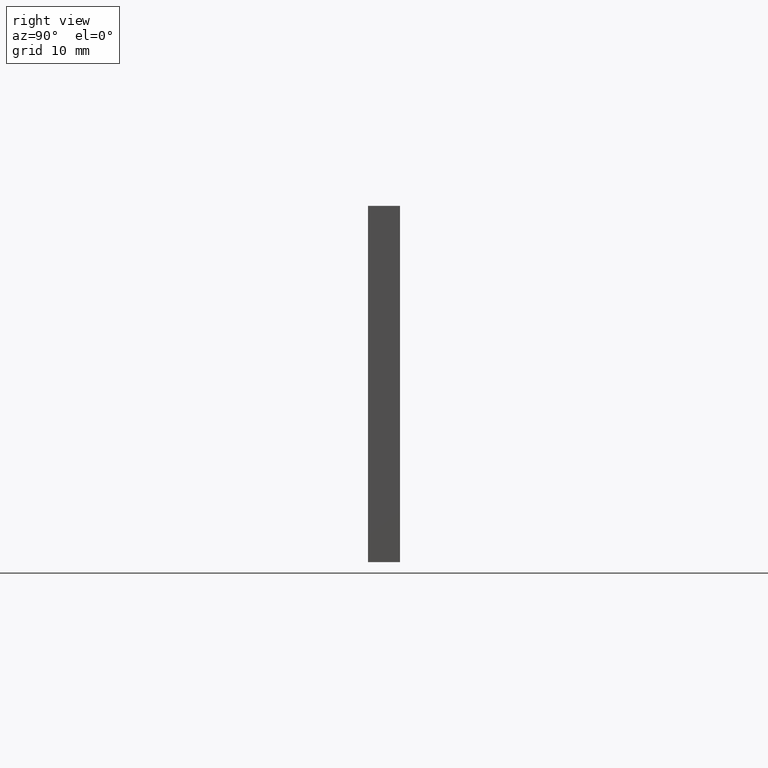
[diagram: clean part render]
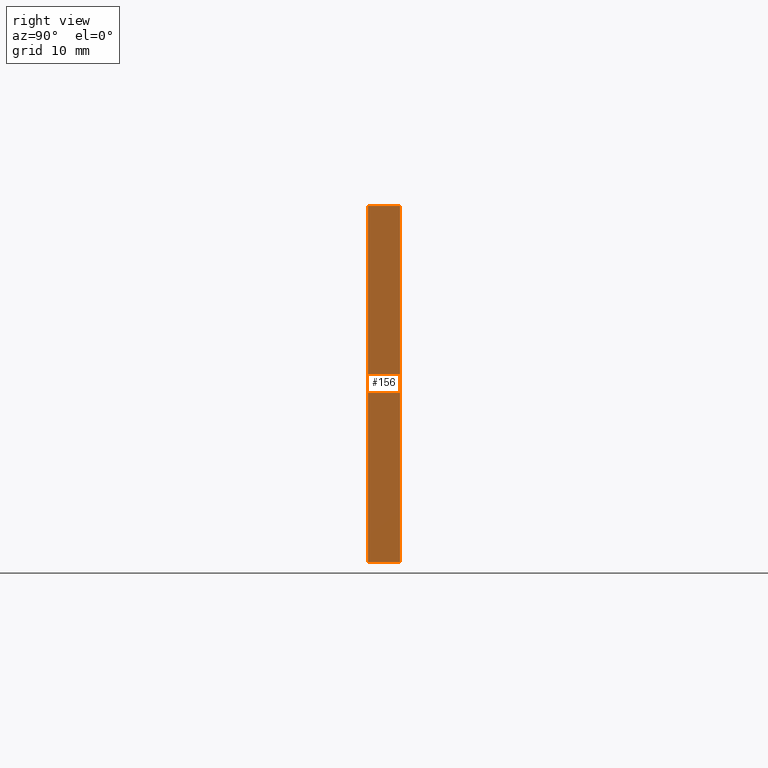
[diagram: same view with one face highlighted and labeled with its STEP entity id]
A machine part, right view. The second image highlights one B-rep face of the part: STEP entity #156.
In plain terms, the highlighted planar face has unit normal (-1, 0, 0).
Its self-contained STEP definition (entity closure, byte-faithful):
#4 = EDGE_CURVE ( 'NONE', #214, #240, #44, .T. ) ;
#9 = AXIS2_PLACEMENT_3D ( 'NONE', #215, #286, #288 ) ;
#27 = EDGE_CURVE ( 'NONE', #226, #240, #106, .T. ) ;
#29 = EDGE_CURVE ( 'NONE', #255, #226, #108, .T. ) ;
#38 = EDGE_CURVE ( 'NONE', #214, #255, #113, .T. ) ;
#43 = ORIENTED_EDGE ( 'NONE', *, *, #38, .F. ) ;
#44 = LINE ( 'NONE', #213, #95 ) ;
#76 = ORIENTED_EDGE ( 'NONE', *, *, #29, .F. ) ;
#78 = ORIENTED_EDGE ( 'NONE', *, *, #4, .T. ) ;
#83 = EDGE_LOOP ( 'NONE', ( #78, #122, #76, #43 ) ) ;
#95 = VECTOR ( 'NONE', #256, 1000.000000000000000 ) ;
#101 = FACE_OUTER_BOUND ( 'NONE', #83, .T. ) ;
#106 = LINE ( 'NONE', #234, #107 ) ;
#107 = VECTOR ( 'NONE', #248, 1000.000000000000000 ) ;
#108 = LINE ( 'NONE', #245, #109 ) ;
#109 = VECTOR ( 'NONE', #233, 1000.000000000000000 ) ;
#113 = LINE ( 'NONE', #246, #114 ) ;
#114 = VECTOR ( 'NONE', #178, 1000.000000000000000 ) ;
#122 = ORIENTED_EDGE ( 'NONE', *, *, #27, .F. ) ;
#156 = ADVANCED_FACE ( 'NONE', ( #101 ), #247, .F. ) ;
#174 = CARTESIAN_POINT ( 'NONE',  ( 30.00000000000000000, 3.000000000000000000, 16.75000000000000000 ) ) ;
#178 = DIRECTION ( 'NONE',  ( 0.0000000000000000000, 0.0000000000000000000, 1.000000000000000000 ) ) ;
#205 = CARTESIAN_POINT ( 'NONE',  ( 30.00000000000000000, 0.0000000000000000000, 16.75000000000000000 ) ) ;
#209 = CARTESIAN_POINT ( 'NONE',  ( 30.00000000000000000, 3.000000000000000000, -16.75000000000000000 ) ) ;
#213 = CARTESIAN_POINT ( 'NONE',  ( 30.00000000000000000, 3.000000000000000000, -16.75000000000000000 ) ) ;
#214 = VERTEX_POINT ( 'NONE', #284 ) ;
#215 = CARTESIAN_POINT ( 'NONE',  ( 30.00000000000000000, 3.000000000000000000, 16.75000000000000000 ) ) ;
#226 = VERTEX_POINT ( 'NONE', #174 ) ;
#233 = DIRECTION ( 'NONE',  ( 0.0000000000000000000, 1.000000000000000000, -0.0000000000000000000 ) ) ;
#234 = CARTESIAN_POINT ( 'NONE',  ( 30.00000000000000000, 3.000000000000000000, 0.0000000000000000000 ) ) ;
#240 = VERTEX_POINT ( 'NONE', #209 ) ;
#245 = CARTESIAN_POINT ( 'NONE',  ( 30.00000000000000000, 3.000000000000000000, 16.75000000000000000 ) ) ;
#246 = CARTESIAN_POINT ( 'NONE',  ( 30.00000000000000000, 0.0000000000000000000, 16.75000000000000000 ) ) ;
#247 = PLANE ( 'NONE',  #9 ) ;
#248 = DIRECTION ( 'NONE',  ( -0.0000000000000000000, 0.0000000000000000000, -1.000000000000000000 ) ) ;
#255 = VERTEX_POINT ( 'NONE', #205 ) ;
#256 = DIRECTION ( 'NONE',  ( -0.0000000000000000000, 1.000000000000000000, 0.0000000000000000000 ) ) ;
#284 = CARTESIAN_POINT ( 'NONE',  ( 30.00000000000000000, 0.0000000000000000000, -16.75000000000000000 ) ) ;
#286 = DIRECTION ( 'NONE',  ( -1.000000000000000000, 0.0000000000000000000, 0.0000000000000000000 ) ) ;
#288 = DIRECTION ( 'NONE',  ( 0.0000000000000000000, 0.0000000000000000000, 1.000000000000000000 ) ) ;